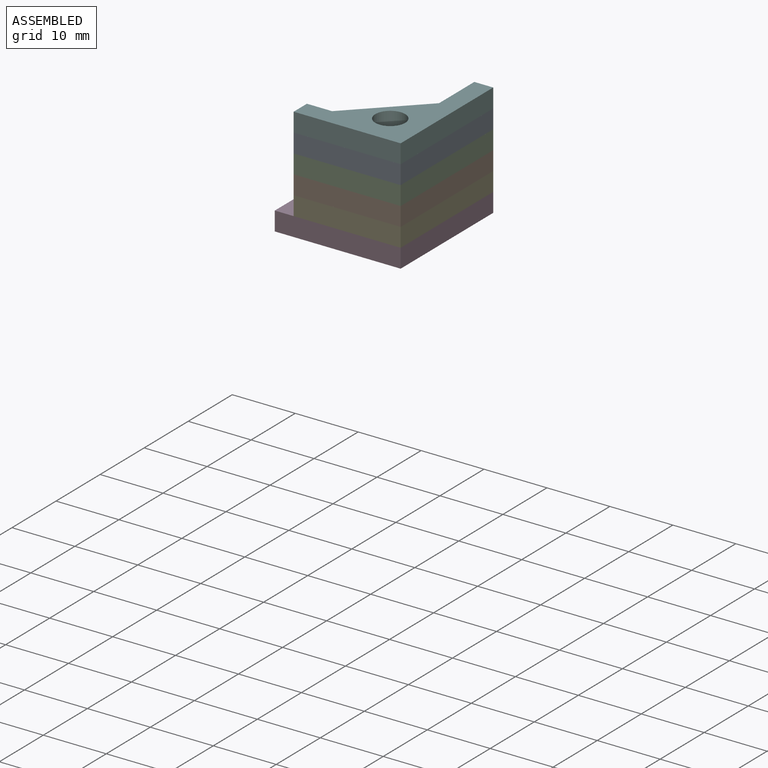
[diagram: assembled view]
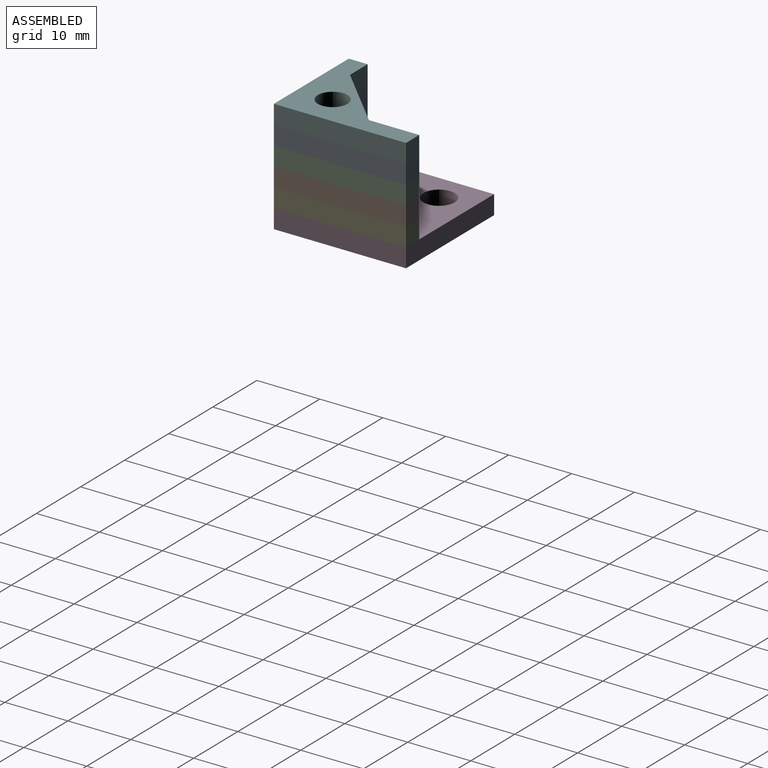
[diagram: assembled view, second angle]
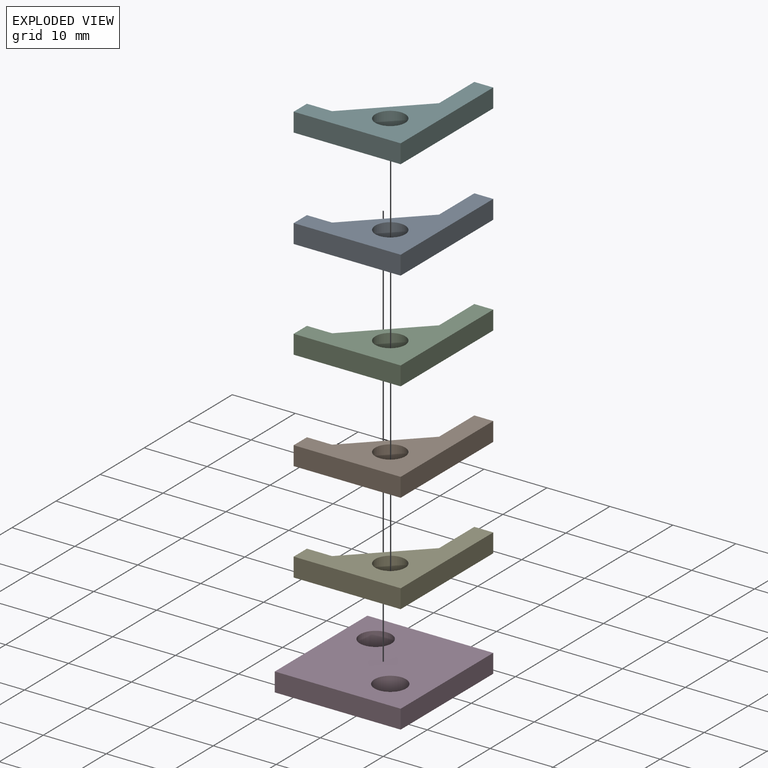
[diagram: exploded view]
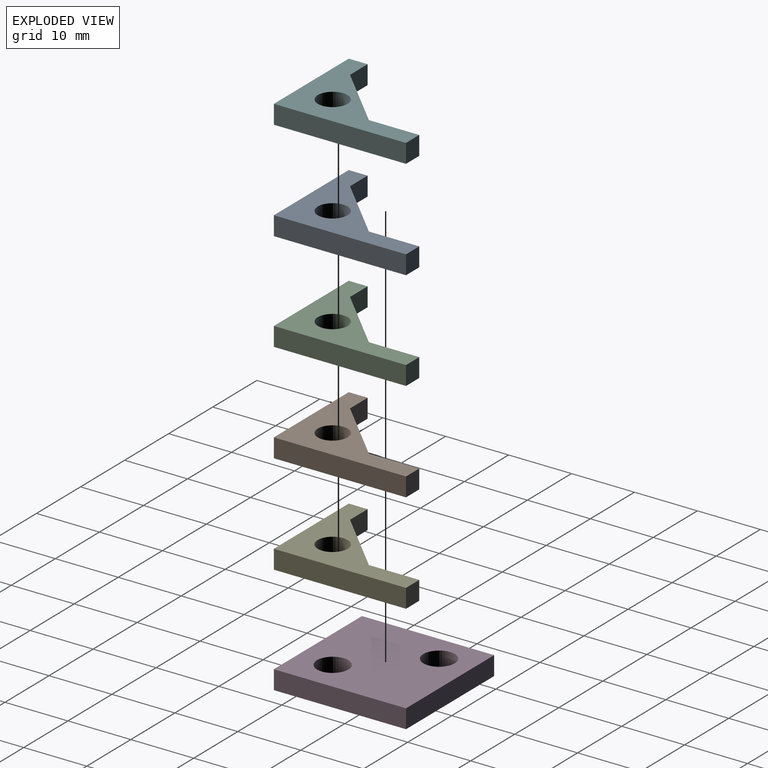
[diagram: exploded view, second angle]
ASSEMBLY  parts=6 mates=5
PART A: 10 faces, bbox 17x21x3 mm
  f0: plane 17x3mm, normal (0,-1,0), area 51mm2, adj f1,f6,f8,f9
  f1: plane 21x3mm, normal (1,0,0), area 63mm2, adj f0,f2,f8,f9
  f2: plane 3x3mm, normal (0,1,0), area 9mm2, adj f1,f3,f8,f9
  f3: plane 8x3mm, normal (-1,0,0), area 24mm2, adj f2,f4,f8,f9
  f4: plane 10x10mm, normal (-0.71,0.71,0), area 42.4mm2, adj f3,f5,f8,f9
  f5: plane 4x3mm, normal (0,1,0), area 12mm2, adj f4,f6,f8,f9
  f6: plane 3x3mm, normal (-1,0,0), area 9mm2, adj f0,f5,f8,f9
  f7: cylinder r=2.37mm len=4.74mm, axis (0,0,-1), area 44.7mm2, adj f8,f9
  f8: plane 21x17mm, normal (0,0,1), area 137.4mm2, adj f0,f1,f2,f3,f4,f5,f6,f7
  f9: plane 21x17mm, normal (0,0,-1), area 137.4mm2, adj f0,f1,f2,f3,f4,f5,f6,f7
PART B: same geometry as A
PART C: same geometry as A
PART D: 8 faces, bbox 20x21x3 mm
  f0: plane 20x3mm, normal (0,1,0), area 60mm2, adj f1,f4,f5,f6
  f1: plane 21x3mm, normal (-1,0,0), area 63mm2, adj f0,f2,f5,f6
  f2: plane 20x3mm, normal (0,-1,0), area 60mm2, adj f1,f4,f5,f6
  f3: cylinder r=2.5mm len=5mm, axis (0,0,-1), area 47.1mm2, adj f5,f6
  f4: plane 21x3mm, normal (1,0,0), area 63mm2, adj f0,f2,f5,f6
  f5: plane 21x20mm, normal (0,0,1), area 380.7mm2, adj f0,f1,f2,f3,f4,f7
  f6: plane 21x20mm, normal (0,0,-1), area 380.7mm2, adj f0,f1,f2,f3,f4,f7
  f7: cylinder r=2.5mm len=5mm, axis (0,0,1), area 47.1mm2, adj f5,f6
PART E: same geometry as A
PART F: same geometry as A
PLACE A t=(13.49,-14.1,30.43)mm
PLACE B t=(13.49,-14.1,24.43)mm
PLACE C t=(13.49,-14.1,27.43)mm
PLACE D t=(-9.75,23.41,18.43)mm
PLACE E t=(13.49,-14.1,21.43)mm
PLACE F t=(13.49,-14.1,33.43)mm fixed
MATE fastened E.f9 <-> D.f5  axis (0,0,1) through (7.76,7.17,21.43)mm
MATE fastened C.f8 <-> A.f9  axis (0,0,1) through (-9.24,10.17,30.43)mm
MATE fastened E.f8 <-> B.f9  axis (0,0,1) through (-9.24,10.17,24.43)mm
MATE fastened A.f8 <-> F.f9  axis (0,0,1) through (-9.24,10.17,33.43)mm
MATE fastened B.f8 <-> C.f9  axis (0,0,1) through (-9.24,10.17,27.43)mm
